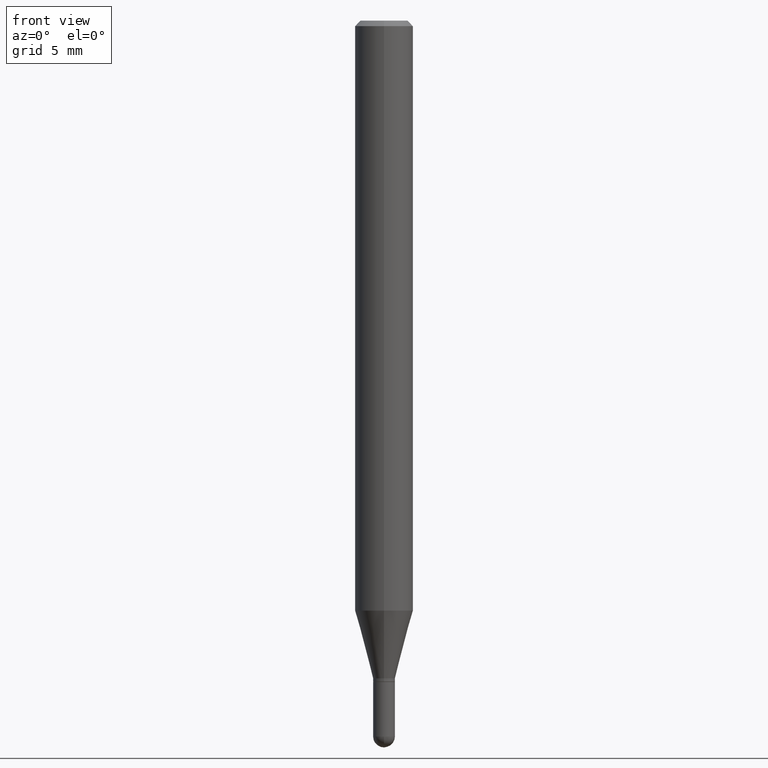
[diagram: clean part render]
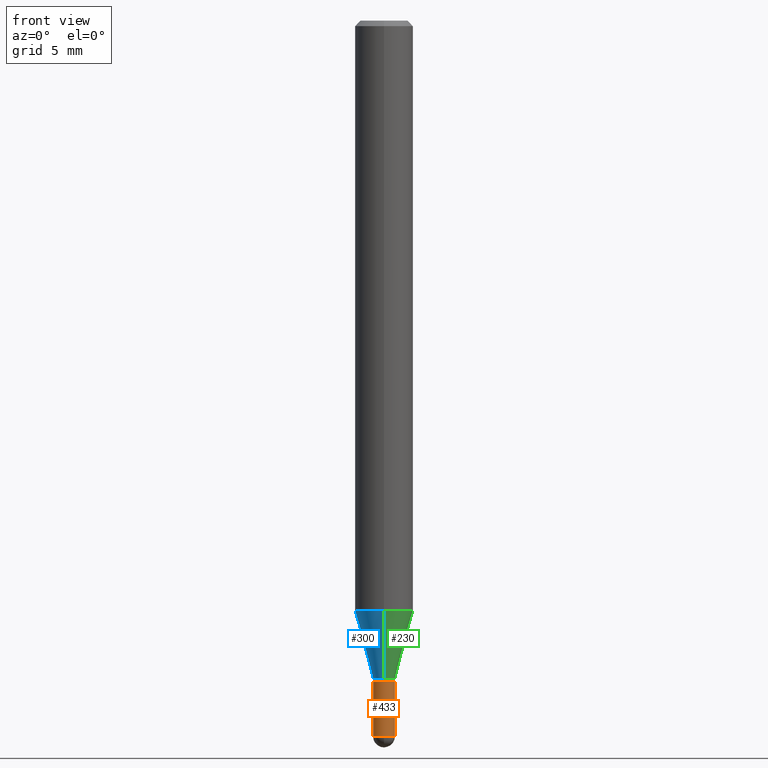
[diagram: same view with three faces highlighted in distinct colors, each labeled with its STEP entity id]
A machine part, front view with three faces highlighted in distinct colors.
Their STEP definitions:

[orange] entity #433 — the highlighted cylindrical surface (edge-blend (fillet) strip) has radius 0.7506 mm, axis along (-0, 0, 1).
#1 = AXIS2_PLACEMENT_3D ( 'NONE', #234, #21, #60 ) ;
#16 = CARTESIAN_POINT ( 'NONE',  ( 4.741641741752670047E-29, -6.769807741949916508E-15, -1.938949999999999729 ) ) ;
#21 = DIRECTION ( 'NONE',  ( -2.445468806185136597E-29, 3.491481338843145583E-15, 1.000000000000000000 ) ) ;
#23 = DIRECTION ( 'NONE',  ( -2.445468806185136597E-29, 3.491481338843145583E-15, 1.000000000000000000 ) ) ;
#40 = VERTEX_POINT ( 'NONE', #255 ) ;
#43 = ORIENTED_EDGE ( 'NONE', *, *, #475, .F. ) ;
#60 = DIRECTION ( 'NONE',  ( 1.000000000000000000, -6.982962677686261977E-15, 0.000000000000000000 ) ) ;
#66 = CARTESIAN_POINT ( 'NONE',  ( 0.000000000000000000, 0.000000000000000000, 0.000000000000000000 ) ) ;
#88 = DIRECTION ( 'NONE',  ( -2.445468806185136877E-29, 3.491481338843145188E-15, 1.000000000000000000 ) ) ;
#92 = CIRCLE ( 'NONE', #356, 0.02954999999999999988 ) ;
#104 = CARTESIAN_POINT ( 'NONE',  ( -2.099653784170616315E-16, -0.02955000000000669938, -1.938949999999999729 ) ) ;
#147 = CARTESIAN_POINT ( 'NONE',  ( 0.02954999999999999988, -2.063465471256291914E-16, 1.440910237247699070E-30 ) ) ;
#154 = ORIENTED_EDGE ( 'NONE', *, *, #241, .T. ) ;
#157 = AXIS2_PLACEMENT_3D ( 'NONE', #319, #462, #398 ) ;
#180 = DIRECTION ( 'NONE',  ( -2.445468806185136877E-29, 3.491481338843145188E-15, 1.000000000000000000 ) ) ;
#185 = DIRECTION ( 'NONE',  ( -2.445468806185136597E-29, 3.491481338843145583E-15, 1.000000000000000000 ) ) ;
#193 = ORIENTED_EDGE ( 'NONE', *, *, #467, .T. ) ;
#233 = AXIS2_PLACEMENT_3D ( 'NONE', #66, #23, #391 ) ;
#234 = CARTESIAN_POINT ( 'NONE',  ( 4.741641741752670047E-29, -6.769807741949916508E-15, -1.938949999999999729 ) ) ;
#235 = CARTESIAN_POINT ( 'NONE',  ( -0.02954999999999999988, -6.302083753692712485E-15, -1.938949999999999729 ) ) ;
#241 = EDGE_CURVE ( 'NONE', #317, #40, #483, .T. ) ;
#246 = ORIENTED_EDGE ( 'NONE', *, *, #369, .F. ) ;
#247 = VERTEX_POINT ( 'NONE', #104 ) ;
#255 = CARTESIAN_POINT ( 'NONE',  ( 0.02954999999999999988, -6.460637069395355998E-15, -1.791300000000000114 ) ) ;
#284 = VERTEX_POINT ( 'NONE', #310 ) ;
#290 = EDGE_LOOP ( 'NONE', ( #246, #193, #366, #154, #43 ) ) ;
#298 = CIRCLE ( 'NONE', #1, 0.02954999999999999988 ) ;
#310 = CARTESIAN_POINT ( 'NONE',  ( -0.02954999999999999988, -6.302083753692712485E-15, -1.791300000000000114 ) ) ;
#312 = CYLINDRICAL_SURFACE ( 'NONE', #233, 0.02954999999999999988 ) ;
#317 = VERTEX_POINT ( 'NONE', #327 ) ;
#319 = CARTESIAN_POINT ( 'NONE',  ( 4.380568272519435501E-29, -6.254290522269726388E-15, -1.791300000000000114 ) ) ;
#327 = CARTESIAN_POINT ( 'NONE',  ( 0.02954999999999999988, -6.718395679235450664E-15, -1.938949999999999729 ) ) ;
#337 = CARTESIAN_POINT ( 'NONE',  ( -0.02954999999999999988, 2.099653784171096041E-16, -1.453545319170324550E-30 ) ) ;
#351 = DIRECTION ( 'NONE',  ( 1.000000000000000000, -6.982962677686261977E-15, 0.000000000000000000 ) ) ;
#356 = AXIS2_PLACEMENT_3D ( 'NONE', #16, #185, #351 ) ;
#366 = ORIENTED_EDGE ( 'NONE', *, *, #458, .T. ) ;
#369 = EDGE_CURVE ( 'NONE', #501, #284, #432, .T. ) ;
#387 = CIRCLE ( 'NONE', #157, 0.02954999999999999988 ) ;
#391 = DIRECTION ( 'NONE',  ( 1.000000000000000000, -6.982962677686266711E-15, 4.876176775795935793E-29 ) ) ;
#394 = VECTOR ( 'NONE', #180, 39.37007874015748143 ) ;
#398 = DIRECTION ( 'NONE',  ( 1.000000000000000000, -6.982962677686261977E-15, 0.000000000000000000 ) ) ;
#432 = LINE ( 'NONE', #337, #438 ) ;
#433 = ADVANCED_FACE ( 'NONE', ( #486 ), #312, .T. ) ;
#438 = VECTOR ( 'NONE', #88, 39.37007874015748143 ) ;
#458 = EDGE_CURVE ( 'NONE', #247, #317, #298, .T. ) ;
#462 = DIRECTION ( 'NONE',  ( -2.445468806185136597E-29, 3.491481338843145583E-15, 1.000000000000000000 ) ) ;
#467 = EDGE_CURVE ( 'NONE', #501, #247, #92, .T. ) ;
#475 = EDGE_CURVE ( 'NONE', #284, #40, #387, .T. ) ;
#483 = LINE ( 'NONE', #147, #394 ) ;
#486 = FACE_OUTER_BOUND ( 'NONE', #290, .T. ) ;
#501 = VERTEX_POINT ( 'NONE', #235 ) ;

[blue] entity #300 — the highlighted conical surface has half-angle 15 deg.
#20 = CARTESIAN_POINT ( 'NONE',  ( 5.595524044111175545E-16, 0.07874999999999438005, -1.597883100267613266 ) ) ;
#25 = EDGE_CURVE ( 'NONE', #191, #502, #303, .T. ) ;
#26 = AXIS2_PLACEMENT_3D ( 'NONE', #415, #370, #167 ) ;
#42 = EDGE_CURVE ( 'NONE', #470, #401, #445, .T. ) ;
#45 = AXIS2_PLACEMENT_3D ( 'NONE', #336, #129, #292 ) ;
#71 = ORIENTED_EDGE ( 'NONE', *, *, #25, .T. ) ;
#78 = ORIENTED_EDGE ( 'NONE', *, *, #42, .F. ) ;
#80 = CIRCLE ( 'NONE', #26, 0.07875000000000000056 ) ;
#91 = EDGE_CURVE ( 'NONE', #401, #502, #80, .T. ) ;
#103 = EDGE_CURVE ( 'NONE', #470, #191, #288, .T. ) ;
#113 = FACE_OUTER_BOUND ( 'NONE', #464, .T. ) ;
#115 = VECTOR ( 'NONE', #249, 39.37007874015748143 ) ;
#129 = DIRECTION ( 'NONE',  ( -2.445423421396322827E-29, 3.491546332443868579E-15, 1.000000000000000000 ) ) ;
#132 = DIRECTION ( 'NONE',  ( -1.807323732225332111E-15, -0.2588190451025184635, 0.9659258262890689783 ) ) ;
#159 = ORIENTED_EDGE ( 'NONE', *, *, #103, .T. ) ;
#167 = DIRECTION ( 'NONE',  ( -6.982962677686264344E-15, -1.000000000000000000, 3.469013325287953293E-15 ) ) ;
#191 = VERTEX_POINT ( 'NONE', #416 ) ;
#197 = CARTESIAN_POINT ( 'NONE',  ( 4.356521825217549114E-29, -6.220189791248753250E-15, -1.781500000000000083 ) ) ;
#210 = VECTOR ( 'NONE', #132, 39.37007874015748854 ) ;
#223 = AXIS2_PLACEMENT_3D ( 'NONE', #197, #400, #359 ) ;
#238 = ORIENTED_EDGE ( 'NONE', *, *, #91, .F. ) ;
#249 = DIRECTION ( 'NONE',  ( 1.839019923739602287E-15, 0.2588190451025252359, 0.9659258262890670910 ) ) ;
#288 = CIRCLE ( 'NONE', #45, 0.02955000000000019764 ) ;
#292 = DIRECTION ( 'NONE',  ( -6.982962677686265133E-15, -1.000000000000000000, 0.000000000000000000 ) ) ;
#300 = ADVANCED_FACE ( 'NONE', ( #113 ), #373, .T. ) ;
#303 = LINE ( 'NONE', #450, #210 ) ;
#323 = CARTESIAN_POINT ( 'NONE',  ( 3.847588914141361851E-16, 0.02954999999999397692, -1.781500000000000083 ) ) ;
#336 = CARTESIAN_POINT ( 'NONE',  ( 4.356521825217549114E-29, -6.220189791248753250E-15, -1.781500000000000083 ) ) ;
#359 = DIRECTION ( 'NONE',  ( -6.982962677686265133E-15, -1.000000000000000000, 0.000000000000000000 ) ) ;
#370 = DIRECTION ( 'NONE',  ( -2.445423421396322827E-29, 3.491546332443868579E-15, 1.000000000000000000 ) ) ;
#373 = CONICAL_SURFACE ( 'NONE', #223, 0.02955000000000019764, 0.2617993877991505736 ) ;
#400 = DIRECTION ( 'NONE',  ( -2.445423421396322827E-29, 3.491546332443868579E-15, 1.000000000000000000 ) ) ;
#401 = VERTEX_POINT ( 'NONE', #20 ) ;
#413 = CARTESIAN_POINT ( 'NONE',  ( 2.099653784171545198E-16, 0.02954999999999397692, -1.781500000000000083 ) ) ;
#415 = CARTESIAN_POINT ( 'NONE',  ( 3.907500758047788968E-29, -5.579082878413422637E-15, -1.597883100267613043 ) ) ;
#416 = CARTESIAN_POINT ( 'NONE',  ( -2.063465471255869873E-16, -0.02955000000000641489, -1.781500000000000083 ) ) ;
#445 = LINE ( 'NONE', #413, #115 ) ;
#450 = CARTESIAN_POINT ( 'NONE',  ( -2.063465471255869873E-16, -0.02955000000000641489, -1.781500000000000083 ) ) ;
#464 = EDGE_LOOP ( 'NONE', ( #78, #159, #71, #238 ) ) ;
#470 = VERTEX_POINT ( 'NONE', #323 ) ;
#487 = CARTESIAN_POINT ( 'NONE',  ( -5.499083108677545929E-16, -0.07875000000000559330, -1.597883100267612599 ) ) ;
#502 = VERTEX_POINT ( 'NONE', #487 ) ;

[green] entity #230 — the highlighted conical surface has half-angle 15 deg.
#12 = FACE_OUTER_BOUND ( 'NONE', #161, .T. ) ;
#20 = CARTESIAN_POINT ( 'NONE',  ( 5.595524044111175545E-16, 0.07874999999999438005, -1.597883100267613266 ) ) ;
#25 = EDGE_CURVE ( 'NONE', #191, #502, #303, .T. ) ;
#29 = ORIENTED_EDGE ( 'NONE', *, *, #395, .T. ) ;
#37 = ORIENTED_EDGE ( 'NONE', *, *, #67, .F. ) ;
#42 = EDGE_CURVE ( 'NONE', #470, #401, #445, .T. ) ;
#46 = CONICAL_SURFACE ( 'NONE', #151, 0.02955000000000019764, 0.2617993877991505736 ) ;
#67 = EDGE_CURVE ( 'NONE', #502, #401, #263, .T. ) ;
#69 = AXIS2_PLACEMENT_3D ( 'NONE', #179, #448, #97 ) ;
#97 = DIRECTION ( 'NONE',  ( -6.982962677686264344E-15, -1.000000000000000000, 3.469013325287953293E-15 ) ) ;
#115 = VECTOR ( 'NONE', #249, 39.37007874015748143 ) ;
#132 = DIRECTION ( 'NONE',  ( -1.807323732225332111E-15, -0.2588190451025184635, 0.9659258262890689783 ) ) ;
#145 = CIRCLE ( 'NONE', #428, 0.02955000000000019764 ) ;
#151 = AXIS2_PLACEMENT_3D ( 'NONE', #386, #302, #225 ) ;
#161 = EDGE_LOOP ( 'NONE', ( #29, #396, #37, #466 ) ) ;
#179 = CARTESIAN_POINT ( 'NONE',  ( 3.907500758047788968E-29, -5.579082878413422637E-15, -1.597883100267613043 ) ) ;
#191 = VERTEX_POINT ( 'NONE', #416 ) ;
#210 = VECTOR ( 'NONE', #132, 39.37007874015748854 ) ;
#225 = DIRECTION ( 'NONE',  ( -6.982962677686265133E-15, -1.000000000000000000, 0.000000000000000000 ) ) ;
#226 = CARTESIAN_POINT ( 'NONE',  ( 4.356521825217549114E-29, -6.220189791248753250E-15, -1.781500000000000083 ) ) ;
#230 = ADVANCED_FACE ( 'NONE', ( #12 ), #46, .T. ) ;
#249 = DIRECTION ( 'NONE',  ( 1.839019923739602287E-15, 0.2588190451025252359, 0.9659258262890670910 ) ) ;
#260 = DIRECTION ( 'NONE',  ( -2.445423421396322827E-29, 3.491546332443868579E-15, 1.000000000000000000 ) ) ;
#263 = CIRCLE ( 'NONE', #69, 0.07875000000000000056 ) ;
#293 = DIRECTION ( 'NONE',  ( -6.982962677686265133E-15, -1.000000000000000000, 0.000000000000000000 ) ) ;
#302 = DIRECTION ( 'NONE',  ( -2.445423421396322827E-29, 3.491546332443868579E-15, 1.000000000000000000 ) ) ;
#303 = LINE ( 'NONE', #450, #210 ) ;
#323 = CARTESIAN_POINT ( 'NONE',  ( 3.847588914141361851E-16, 0.02954999999999397692, -1.781500000000000083 ) ) ;
#386 = CARTESIAN_POINT ( 'NONE',  ( 4.356521825217549114E-29, -6.220189791248753250E-15, -1.781500000000000083 ) ) ;
#395 = EDGE_CURVE ( 'NONE', #191, #470, #145, .T. ) ;
#396 = ORIENTED_EDGE ( 'NONE', *, *, #42, .T. ) ;
#401 = VERTEX_POINT ( 'NONE', #20 ) ;
#413 = CARTESIAN_POINT ( 'NONE',  ( 2.099653784171545198E-16, 0.02954999999999397692, -1.781500000000000083 ) ) ;
#416 = CARTESIAN_POINT ( 'NONE',  ( -2.063465471255869873E-16, -0.02955000000000641489, -1.781500000000000083 ) ) ;
#428 = AXIS2_PLACEMENT_3D ( 'NONE', #226, #260, #293 ) ;
#445 = LINE ( 'NONE', #413, #115 ) ;
#448 = DIRECTION ( 'NONE',  ( -2.445423421396322827E-29, 3.491546332443868579E-15, 1.000000000000000000 ) ) ;
#450 = CARTESIAN_POINT ( 'NONE',  ( -2.063465471255869873E-16, -0.02955000000000641489, -1.781500000000000083 ) ) ;
#466 = ORIENTED_EDGE ( 'NONE', *, *, #25, .F. ) ;
#470 = VERTEX_POINT ( 'NONE', #323 ) ;
#487 = CARTESIAN_POINT ( 'NONE',  ( -5.499083108677545929E-16, -0.07875000000000559330, -1.597883100267612599 ) ) ;
#502 = VERTEX_POINT ( 'NONE', #487 ) ;